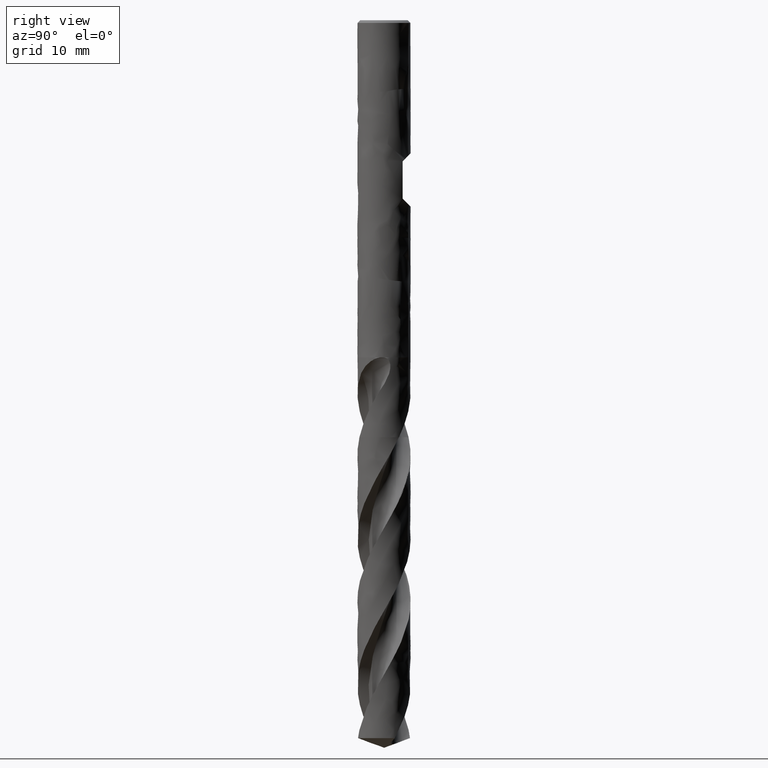
[diagram: clean part render]
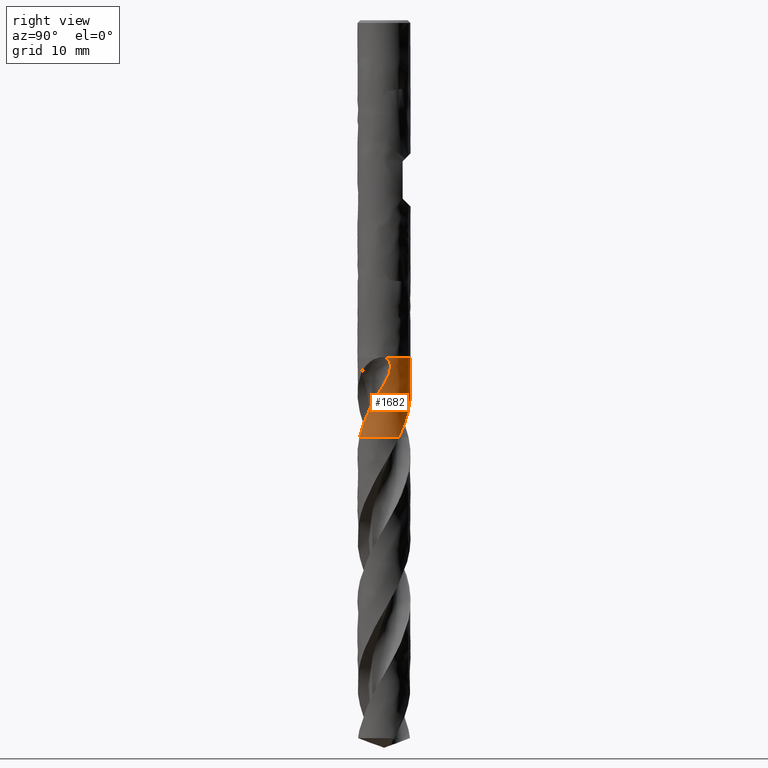
[diagram: same view with one face highlighted and labeled with its STEP entity id]
A machine part, right view. The second image highlights one B-rep face of the part: STEP entity #1682.
In plain terms, the highlighted face is a freeform B-spline surface patch.
Its self-contained STEP definition (entity closure, byte-faithful):
#131 = VERTEX_POINT('', #132);
#132 = CARTESIAN_POINT('', (2.99999955160898, 0.00164022740160811, -38.));
#142 = EDGE_CURVE('', #143, #131, #145, .T.);
#143 = VERTEX_POINT('', #144);
#144 = CARTESIAN_POINT('', (-2.96382198893386, 0.464498889032161, -38.));
#145 = CIRCLE('', #146, 3.);
#146 = AXIS2_PLACEMENT_3D('', #147, #148, #149);
#147 = CARTESIAN_POINT('', (1.42477179352876E-31, 2.32682891837997E-15, -38.));
#148 = DIRECTION('', (3.74939945665464E-33, 6.12323399573677E-17, -1.));
#149 = DIRECTION('', (-1., 6.12323399573677E-17, 0.));
#468 = VERTEX_POINT('', #469);
#469 = CARTESIAN_POINT('', (2.48434583777571, 1.68167349932337, -47.));
#478 = VERTEX_POINT('', #479);
#479 = CARTESIAN_POINT('', (-1.54999579044672, 2.56856244806262, -39.7624892759086));
#499 = EDGE_CURVE('', #478, #468, #500, .T.);
#500 = B_SPLINE_CURVE_WITH_KNOTS('', 3, (#501, #502, #503, #504, #505, #506, #507, #508, #509, #510, #511, #512, #513, #514, #515, #516, #517, #518, #519, #520, #521, #522, #523, #524, #525, #526, #527, #528, #529, #530, #531, #532, #533, #534, #535, #536, #537, #538, #539, #540, #541, #542, #543, #544, #545, #546, #547, #548, #549, #550, #551, #552, #553, #554, #555, #556, #557, #558, #559, #560, #561, #562, #563, #564, #565, #566, #567, #568, #569, #570, #571, #572, #573, #574, #575, #576, #577, #578, #579, #580, #581, #582, #583, #584, #585, #586, #587, #588, #589, #590, #591, #592, #593, #594, #595, #596, #597, #598, #599, #600), .UNSPECIFIED., .F., .U., (4, 3, 3, 3, 3, 3, 3, 3, 3, 3, 3, 3, 3, 3, 3, 3, 3, 3, 3, 3, 3, 3, 3, 3, 3, 3, 3, 3, 3, 3, 3, 3, 3, 4), (0., 0.294164830111087, 0.588382475794471, 0.882665256028507, 1.17702909666557, 1.47147775890357, 1.76602356573875, 2.06066807259052, 2.35542848702278, 2.65030632247468, 2.70866484142036, 2.74758859596559, 3.19199962110668, 3.32343383785876, 3.61949041096786, 3.81675932661893, 3.90437413458325, 4.101592031332, 4.29872699068833, 4.49585462065638, 4.58345757132054, 4.8792523758362, 5.17495792201363, 5.47063667582515, 5.76631412092824, 6.06197503268057, 6.35760755996048, 6.55467898895931, 6.85030819598594, 7.04737888052115, 7.49074671256159, 7.78630445857593, 8.22956865050507, 8.56762657826667), .UNSPECIFIED.);
#501 = CARTESIAN_POINT('', (-1.54999579044672, 2.56856244806262, -39.7624892759086));
#502 = CARTESIAN_POINT('', (-1.4958545497926, 2.60123391188736, -39.8374297418222));
#503 = CARTESIAN_POINT('', (-1.44105371207966, 2.6319668165862, -39.9127662828117));
#504 = CARTESIAN_POINT('', (-1.38577133008511, 2.66075888060421, -39.9884607159621));
#505 = CARTESIAN_POINT('', (-1.33047902246268, 2.68955611406868, -40.0641687396046));
#506 = CARTESIAN_POINT('', (-1.27468136032268, 2.71642398851035, -40.1402674336911));
#507 = CARTESIAN_POINT('', (-1.21856054690918, 2.74137013070406, -40.2167289865967));
#508 = CARTESIAN_POINT('', (-1.16242730934636, 2.7663217955297, -40.2932074667293));
#509 = CARTESIAN_POINT('', (-1.10594609500434, 2.78936227850821, -40.3700782825048));
#510 = CARTESIAN_POINT('', (-1.04927942271925, 2.81051822500015, -40.4473039132268));
#511 = CARTESIAN_POINT('', (-0.992597141558606, 2.83167999891273, -40.5245508158042));
#512 = CARTESIAN_POINT('', (-0.935707066859412, 2.85096436673012, -40.6021823030296));
#513 = CARTESIAN_POINT('', (-0.878774556057596, 2.86840640070855, -40.6801710861655));
#514 = CARTESIAN_POINT('', (-0.821825640025091, 2.8858534606482, -40.7581823419441));
#515 = CARTESIAN_POINT('', (-0.764817202572032, 2.90146261805241, -40.8365824959934));
#516 = CARTESIAN_POINT('', (-0.707899220392716, 2.91528363864777, -40.9153394490852));
#517 = CARTESIAN_POINT('', (-0.650962459814448, 2.92910921907868, -40.9941223856963));
#518 = CARTESIAN_POINT('', (-0.594095230816671, 2.94115054743852, -41.0732886432572));
#519 = CARTESIAN_POINT('', (-0.53744479377187, 2.95146626164819, -41.1528122655555));
#520 = CARTESIAN_POINT('', (-0.480775373604759, 2.96178543257372, -41.2323625356032));
#521 = CARTESIAN_POINT('', (-0.424307756422873, 2.97038066106825, -41.3122989013096));
#522 = CARTESIAN_POINT('', (-0.368181376503941, 2.97732135887205, -41.3925971586165));
#523 = CARTESIAN_POINT('', (-0.312032917527887, 2.98426478701519, -41.4729270037402));
#524 = CARTESIAN_POINT('', (-0.256204198060592, 2.98955531658545, -41.5536405943101));
#525 = CARTESIAN_POINT('', (-0.200816708283138, 2.99327122888562, -41.634709470146));
#526 = CARTESIAN_POINT('', (-0.145407154296222, 2.99698862145991, -41.715810640651));
#527 = CARTESIAN_POINT('', (-0.0904227911051677, 2.99913102388894, -41.7972908233468));
#528 = CARTESIAN_POINT('', (-0.0359916134119737, 2.99978409285806, -41.8791337090103));
#529 = CARTESIAN_POINT('', (-0.0252192781166615, 2.99991334006902, -41.8953310253879));
#530 = CARTESIAN_POINT('', (-0.0144682299486219, 2.99998429639138, -41.9115430884573));
#531 = CARTESIAN_POINT('', (-0.00373938593416866, 2.9999976694979, -41.9277697547097));
#532 = CARTESIAN_POINT('', (0.0034164997619958, 3.00000658904427, -41.9385925580588));
#533 = CARTESIAN_POINT('', (0.0105625505747062, 2.99998989266092, -41.949421921693));
#534 = CARTESIAN_POINT('', (0.0176984997046002, 2.99994779339711, -41.960257802352));
#535 = CARTESIAN_POINT('', (0.0991730261274094, 2.99946712607184, -42.0839762074298));
#536 = CARTESIAN_POINT('', (0.179350903839351, 2.99567103299351, -42.2085849659896));
#537 = CARTESIAN_POINT('', (0.257873436069986, 2.98889633325906, -42.3340157781032));
#538 = CARTESIAN_POINT('', (0.281096414207955, 2.9868927210556, -42.3711118437139));
#539 = CARTESIAN_POINT('', (0.304177102642055, 2.9846287059088, -42.4082841412074));
#540 = CARTESIAN_POINT('', (0.327109488973403, 2.98211324101275, -42.4455295080703));
#541 = CARTESIAN_POINT('', (0.378764863641017, 2.97644713719823, -42.5294249802701));
#542 = CARTESIAN_POINT('', (0.429684060368994, 2.96950289229166, -42.6137003346738));
#543 = CARTESIAN_POINT('', (0.479783337918766, 2.96138615324911, -42.6983349236811));
#544 = CARTESIAN_POINT('', (0.513165573122519, 2.95597779398611, -42.7547287859241));
#545 = CARTESIAN_POINT('', (0.546186849273579, 2.95004828367642, -42.8112901261516));
#546 = CARTESIAN_POINT('', (0.57880310341097, 2.94363499223023, -42.8680258409587));
#547 = CARTESIAN_POINT('', (0.593289252094515, 2.94078659973706, -42.893224381444));
#548 = CARTESIAN_POINT('', (0.607695719034523, 2.93784278696359, -42.9184582784675));
#549 = CARTESIAN_POINT('', (0.622017520346841, 2.93480735387889, -42.9437288233613));
#550 = CARTESIAN_POINT('', (0.654255398829882, 2.92797469918734, -43.0006119442565));
#551 = CARTESIAN_POINT('', (0.686060951736294, 2.92067896163759, -43.0576878634725));
#552 = CARTESIAN_POINT('', (0.717452776156632, 2.91294722128389, -43.1149279628143));
#553 = CARTESIAN_POINT('', (0.748831399158114, 2.9052187324119, -43.1721439905853));
#554 = CARTESIAN_POINT('', (0.779799334853037, 2.89705483980648, -43.2295290032839));
#555 = CARTESIAN_POINT('', (0.810454877010884, 2.88845337375028, -43.2870118169963));
#556 = CARTESIAN_POINT('', (0.841109279409594, 2.87985222749268, -43.3444924935238));
#557 = CARTESIAN_POINT('', (0.871454207972092, 2.87081359903474, -43.4020747946412));
#558 = CARTESIAN_POINT('', (0.901662468664171, 2.86129425131398, -43.4596468649736));
#559 = CARTESIAN_POINT('', (0.915086932659842, 2.85706388062028, -43.4852317271148));
#560 = CARTESIAN_POINT('', (0.928488891298431, 2.85273676885879, -43.5108125990737));
#561 = CARTESIAN_POINT('', (0.941872036858156, 2.84831126567738, -43.5363860966265));
#562 = CARTESIAN_POINT('', (0.987060753615193, 2.83336838032358, -43.6227360158022));
#563 = CARTESIAN_POINT('', (1.03201198442017, 2.81731019511015, -43.7090248301992));
#564 = CARTESIAN_POINT('', (1.07663392762191, 2.80015345756147, -43.7952579272564));
#565 = CARTESIAN_POINT('', (1.12124240581196, 2.78300189718919, -43.8814650028189));
#566 = CARTESIAN_POINT('', (1.1655284634681, 2.76475088563979, -43.9676279713678));
#567 = CARTESIAN_POINT('', (1.20945541361994, 2.74539935209168, -44.0537191638695));
#568 = CARTESIAN_POINT('', (1.25337838377568, 2.72604957188697, -44.139802556089));
#569 = CARTESIAN_POINT('', (1.29695145060958, 2.70559496801823, -44.2258241166867));
#570 = CARTESIAN_POINT('', (1.34011181683308, 2.6840455134711, -44.3117705855697));
#571 = CARTESIAN_POINT('', (1.3832719920238, 2.66249615430436, -44.3977166740436));
#572 = CARTESIAN_POINT('', (1.42602531790968, 2.63984883150005, -44.4835999070782));
#573 = CARTESIAN_POINT('', (1.46829960773977, 2.61612237135637, -44.5694127571379));
#574 = CARTESIAN_POINT('', (1.51057153372482, 2.59239723792154, -44.6552208088136));
#575 = CARTESIAN_POINT('', (1.5523696016197, 2.56759016410159, -44.7409714148933));
#576 = CARTESIAN_POINT('', (1.59362107524566, 2.5417261592337, -44.8266579867189));
#577 = CARTESIAN_POINT('', (1.63486858858716, 2.51586463739993, -44.9123363323367));
#578 = CARTESIAN_POINT('', (1.67557555113192, 2.48894270316996, -44.9979632238234));
#579 = CARTESIAN_POINT('', (1.7156728684598, 2.46098894927038, -45.0835304334439));
#580 = CARTESIAN_POINT('', (1.74240211810472, 2.44235471345893, -45.1405703418414));
#581 = CARTESIAN_POINT('', (1.7688629769616, 2.42326036012597, -45.1975882177958));
#582 = CARTESIAN_POINT('', (1.79503545595544, 2.40371539743433, -45.2545815021156));
#583 = CARTESIAN_POINT('', (1.83429710463876, 2.37439576520122, -45.340077809393));
#584 = CARTESIAN_POINT('', (1.87291658429433, 2.34405582526298, -45.4255276399005));
#585 = CARTESIAN_POINT('', (1.91079570616228, 2.31276020575238, -45.5109471504098));
#586 = CARTESIAN_POINT('', (1.93604647401162, 2.29189809533393, -45.5678890255988));
#587 = CARTESIAN_POINT('', (1.96096953591708, 2.2706104301919, -45.6248228349357));
#588 = CARTESIAN_POINT('', (1.98552816209581, 2.2489281708237, -45.6817610434343));
#589 = CARTESIAN_POINT('', (2.04077993570403, 2.2001476210809, -45.8098601065793));
#590 = CARTESIAN_POINT('', (2.09418671514244, 2.14937190167603, -45.9380237987429));
#591 = CARTESIAN_POINT('', (2.14562937314384, 2.09672949926842, -46.0661803471718));
#592 = CARTESIAN_POINT('', (2.17992206410861, 2.06163703500738, -46.1516120313251));
#593 = CARTESIAN_POINT('', (2.21335104194827, 2.02570607436923, -46.2370544682231));
#594 = CARTESIAN_POINT('', (2.24588443818637, 1.98897035933478, -46.3224834312796));
#595 = CARTESIAN_POINT('', (2.29467656016137, 1.93387578895294, -46.4506059413042));
#596 = CARTESIAN_POINT('', (2.3414601737719, 1.87696100022515, -46.57873923417));
#597 = CARTESIAN_POINT('', (2.38607764676773, 1.81841509661446, -46.706852928603));
#598 = CARTESIAN_POINT('', (2.42010541336283, 1.77376473411299, -46.8045595578469));
#599 = CARTESIAN_POINT('', (2.45288275699779, 1.72815408774061, -46.9022873671549));
#600 = CARTESIAN_POINT('', (2.48434583777571, 1.68167349932337, -47.));
#869 = EDGE_CURVE('', #478, #143, #870, .T.);
#870 = B_SPLINE_CURVE_WITH_KNOTS('', 3, (#871, #872, #873, #874, #875, #876, #877, #878, #879, #880, #881, #882, #883, #884, #885, #886, #887, #888, #889, #890, #891, #892, #893, #894, #895, #896, #897, #898, #899, #900, #901, #902, #903, #904, #905, #906, #907, #908, #909, #910, #911, #912, #913), .UNSPECIFIED., .F., .U., (4, 3, 3, 3, 3, 3, 3, 3, 3, 3, 3, 3, 3, 3, 4), (0., 0.29894724494428, 0.598100448810067, 0.897412483365339, 1.19683336865093, 1.49629712315956, 1.7957501625323, 1.99445656442013, 2.19311114035138, 2.39168693192649, 2.59014753950857, 2.78844266793803, 2.98650166053903, 3.11813380516181, 3.21234021473355), .UNSPECIFIED.);
#871 = CARTESIAN_POINT('', (-1.54999579044672, 2.56856244806263, -39.7624892759086));
#872 = CARTESIAN_POINT('', (-1.60501723786212, 2.53535982457085, -39.6863304577003));
#873 = CARTESIAN_POINT('', (-1.66040888543253, 2.49951968078601, -39.6115243887356));
#874 = CARTESIAN_POINT('', (-1.71577977252165, 2.46091441789542, -39.5382192865024));
#875 = CARTESIAN_POINT('', (-1.77118880723842, 2.42228255801007, -39.464863680911));
#876 = CARTESIAN_POINT('', (-1.82662938663151, 2.38084461905812, -39.3929347446101));
#877 = CARTESIAN_POINT('', (-1.88167952752436, 2.33651067955952, -39.3225954924507));
#878 = CARTESIAN_POINT('', (-1.93675889642388, 2.29215320165289, -39.2522188947714));
#879 = CARTESIAN_POINT('', (-1.99150889714053, 2.24484681242258, -39.1833544883954));
#880 = CARTESIAN_POINT('', (-2.04548681747898, 2.19453495746131, -39.1162032442386));
#881 = CARTESIAN_POINT('', (-2.09948436795377, 2.14420480560075, -39.0490275792062));
#882 = CARTESIAN_POINT('', (-2.15277854264889, 2.09080148494657, -38.9834828566488));
#883 = CARTESIAN_POINT('', (-2.20489265948438, 2.03431766451356, -38.9198029817127));
#884 = CARTESIAN_POINT('', (-2.25701423769551, 1.97782575707789, -38.8561139894875));
#885 = CARTESIAN_POINT('', (-2.30803075219586, 1.91817043025292, -38.7941964427546));
#886 = CARTESIAN_POINT('', (-2.35744484525082, 1.85538508175537, -38.7343589154561));
#887 = CARTESIAN_POINT('', (-2.40685717021627, 1.79260197978526, -38.6745235292088));
#888 = CARTESIAN_POINT('', (-2.4547506139471, 1.72658229912524, -38.6166652930712));
#889 = CARTESIAN_POINT('', (-2.50059898172792, 1.65740904202352, -38.5611985744679));
#890 = CARTESIAN_POINT('', (-2.53102233028781, 1.61150812529101, -38.5243928298968));
#891 = CARTESIAN_POINT('', (-2.56057783425623, 1.56417064218158, -38.4886019569866));
#892 = CARTESIAN_POINT('', (-2.58910243172904, 1.5154367680688, -38.4539826851733));
#893 = CARTESIAN_POINT('', (-2.61761958950924, 1.46671560456634, -38.4193724426457));
#894 = CARTESIAN_POINT('', (-2.64513498922293, 1.4165495165845, -38.3858978567486));
#895 = CARTESIAN_POINT('', (-2.67147640097651, 1.36499591172486, -38.3537543534934));
#896 = CARTESIAN_POINT('', (-2.69780736599784, 1.31346275249325, -38.32162359802));
#897 = CARTESIAN_POINT('', (-2.72299585620441, 1.26048262851493, -38.2907846229208));
#898 = CARTESIAN_POINT('', (-2.74685884890199, 1.20613700059688, -38.261484759912));
#899 = CARTESIAN_POINT('', (-2.77070799985803, 1.15182289588907, -38.2322018923041));
#900 = CARTESIAN_POINT('', (-2.79326587166897, 1.09606909709299, -38.2044147955663));
#901 = CARTESIAN_POINT('', (-2.81433718748578, 1.0389928754013, -38.178441831276));
#902 = CARTESIAN_POINT('', (-2.83539093375299, 0.981964244639205, -38.1524905235965));
#903 = CARTESIAN_POINT('', (-2.85499542793076, 0.923518272773404, -38.1283051855527));
#904 = CARTESIAN_POINT('', (-2.87294260564572, 0.863829140898579, -38.1063028748363));
#905 = CARTESIAN_POINT('', (-2.89086841131937, 0.804211088644902, -38.0843267651362));
#906 = CARTESIAN_POINT('', (-2.90717758123569, 0.743224430281383, -38.0644800845866));
#907 = CARTESIAN_POINT('', (-2.92165175980982, 0.681139482338351, -38.0473175249104));
#908 = CARTESIAN_POINT('', (-2.93127145514577, 0.639877155699145, -38.0359111024716));
#909 = CARTESIAN_POINT('', (-2.94009478701481, 0.598071433505059, -38.0256758885063));
#910 = CARTESIAN_POINT('', (-2.94805709400443, 0.555841137817389, -38.0168199072268));
#911 = CARTESIAN_POINT('', (-2.95375555280832, 0.525617786649715, -38.0104818641754));
#912 = CARTESIAN_POINT('', (-2.9590181284435, 0.495150818862973, -38.0048452348037));
#913 = CARTESIAN_POINT('', (-2.96382198893386, 0.464498889032161, -38.));
#1234 = VERTEX_POINT('', #1235);
#1235 = CARTESIAN_POINT('', (1.15359555335688, -2.76933517279423, -47.));
#1296 = EDGE_CURVE('', #1297, #1234, #1299, .T.);
#1297 = VERTEX_POINT('', #1298);
#1298 = CARTESIAN_POINT('', (2.50705565885017, -1.6476261479557, -43.8655215830403));
#1299 = B_SPLINE_CURVE_WITH_KNOTS('', 3, (#1300, #1301, #1302, #1303, #1304, #1305, #1306, #1307, #1308, #1309, #1310, #1311, #1312, #1313, #1314, #1315, #1316, #1317, #1318, #1319, #1320, #1321, #1322, #1323, #1324, #1325, #1326, #1327, #1328, #1329, #1330, #1331, #1332, #1333), .UNSPECIFIED., .F., .U., (4, 3, 3, 3, 3, 3, 3, 3, 3, 3, 3, 4), (0., 0.197079818950479, 0.640474655540299, 0.936065962453795, 1.37935499722557, 1.51071553137771, 1.80625121608136, 2.10178364029937, 2.54494692056742, 2.84041410405612, 3.28347251669463, 3.60658912974349), .UNSPECIFIED.);
#1300 = CARTESIAN_POINT('', (2.50705565885017, -1.6476261479557, -43.8655215830403));
#1301 = CARTESIAN_POINT('', (2.48985962557001, -1.67379192142214, -43.9232732484156));
#1302 = CARTESIAN_POINT('', (2.47220093569807, -1.69976936873229, -43.9809747538443));
#1303 = CARTESIAN_POINT('', (2.45407238958687, -1.72555171080654, -44.0386135668816));
#1304 = CARTESIAN_POINT('', (2.41328635789986, -1.78355743362381, -44.1682907313116));
#1305 = CARTESIAN_POINT('', (2.37010555871608, -1.84059121335117, -44.2976763345009));
#1306 = CARTESIAN_POINT('', (2.32462685721199, -1.89634120735924, -44.4267807771531));
#1307 = CARTESIAN_POINT('', (2.29430826144819, -1.93350720982334, -44.5128488766949));
#1308 = CARTESIAN_POINT('', (2.26296461477334, -1.97010884745189, -44.5988077697154));
#1309 = CARTESIAN_POINT('', (2.23063365489142, -2.00605919595261, -44.6846595502605));
#1310 = CARTESIAN_POINT('', (2.18214792589974, -2.05997280881557, -44.8134087794874));
#1311 = CARTESIAN_POINT('', (2.13142741147034, -2.11243599073587, -44.9419523879164));
#1312 = CARTESIAN_POINT('', (2.07859413646751, -2.16320281431097, -45.0702695039644));
#1313 = CARTESIAN_POINT('', (2.06293796931473, -2.17824662667476, -45.1082939159908));
#1314 = CARTESIAN_POINT('', (2.04709506916159, -2.19314293732557, -45.1463005550659));
#1315 = CARTESIAN_POINT('', (2.03106924612585, -2.20788534970495, -45.1842890012512));
#1316 = CARTESIAN_POINT('', (1.99501425735487, -2.24105291380511, -45.2697556258096));
#1317 = CARTESIAN_POINT('', (1.95802689685389, -2.27344554004758, -45.355138287776));
#1318 = CARTESIAN_POINT('', (1.92019972532388, -2.30495835425852, -45.4404649604615));
#1319 = CARTESIAN_POINT('', (1.88237297112063, -2.3364708208056, -45.5257906917839));
#1320 = CARTESIAN_POINT('', (1.84370023798481, -2.36710746669154, -45.6110734463504));
#1321 = CARTESIAN_POINT('', (1.80433125576585, -2.396745443193, -45.6963732288535));
#1322 = CARTESIAN_POINT('', (1.74529581372551, -2.44118883353046, -45.8242838346702));
#1323 = CARTESIAN_POINT('', (1.6846888211716, -2.48339796838225, -45.9522743252724));
#1324 = CARTESIAN_POINT('', (1.62264159669888, -2.52329828769063, -46.0802572456029));
#1325 = CARTESIAN_POINT('', (1.58127328060745, -2.54990075114207, -46.1655864113718));
#1326 = CARTESIAN_POINT('', (1.539252661728, -2.57548467460968, -46.2509254548839));
#1327 = CARTESIAN_POINT('', (1.49661728841512, -2.60002628679345, -46.3362485430995));
#1328 = CARTESIAN_POINT('', (1.4326847711074, -2.63682688038001, -46.4641920648804));
#1329 = CARTESIAN_POINT('', (1.36736156516424, -2.6712856302207, -46.5921431899335));
#1330 = CARTESIAN_POINT('', (1.30087226689973, -2.70328158822035, -46.7200753090877));
#1331 = CARTESIAN_POINT('', (1.25238250517445, -2.72661581523238, -46.8133745036456));
#1332 = CARTESIAN_POINT('', (1.20326008581725, -2.74864689195026, -46.9066945226753));
#1333 = CARTESIAN_POINT('', (1.15359555335688, -2.76933517279423, -47.));
#1336 = VERTEX_POINT('', #1337);
#1337 = CARTESIAN_POINT('', (2.85222793413956, -0.929943983105435, -42.4676549688651));
#1346 = EDGE_CURVE('', #1336, #131, #1347, .T.);
#1347 = B_SPLINE_CURVE_WITH_KNOTS('', 3, (#1348, #1349, #1350, #1351, #1352, #1353, #1354, #1355, #1356, #1357, #1358, #1359, #1360, #1361, #1362, #1363, #1364, #1365, #1366, #1367, #1368, #1369, #1370, #1371, #1372, #1373, #1374, #1375, #1376, #1377, #1378, #1379, #1380, #1381, #1382, #1383, #1384, #1385, #1386, #1387, #1388, #1389, #1390, #1391, #1392, #1393, #1394, #1395, #1396, #1397, #1398, #1399, #1400, #1401, #1402, #1403, #1404, #1405, #1406, #1407, #1408, #1409, #1410, #1411, #1412, #1413, #1414, #1415, #1416, #1417, #1418, #1419, #1420, #1421, #1422, #1423, #1424, #1425, #1426, #1427, #1428, #1429, #1430, #1431, #1432, #1433, #1434, #1435, #1436, #1437, #1438, #1439, #1440, #1441, #1442, #1443, #1444, #1445, #1446, #1447, #1448, #1449, #1450), .UNSPECIFIED., .F., .U., (4, 3, 3, 3, 3, 3, 3, 3, 3, 3, 3, 3, 3, 3, 3, 3, 3, 3, 3, 3, 3, 3, 3, 3, 3, 3, 3, 3, 3, 3, 3, 3, 3, 3, 4), (0., 0.131300001536179, 0.426522809850261, 0.721488446798984, 1.01615676007376, 1.2126748285733, 1.40911375144577, 1.60547487849174, 1.69290343880252, 1.7318024763119, 1.92841427811608, 2.2227538317156, 2.41912414539842, 2.61542093117763, 2.81166578380511, 3.00788364042373, 3.20411708244748, 3.40042246020987, 3.59687593386893, 3.79359156419018, 3.99073260830054, 4.12236386603068, 4.16132308088065, 4.29336631528, 4.42578769694584, 4.51396977237787, 4.60226462379197, 4.69065217823062, 4.77909383227413, 4.8675344107312, 4.95591133090388, 5.04416827860045, 5.13226678409075, 5.22019045714594, 5.25190092771809), .UNSPECIFIED.);
#1348 = CARTESIAN_POINT('', (2.85222793413955, -0.929943983105437, -42.4676549688651));
#1349 = CARTESIAN_POINT('', (2.85965955648124, -0.907150480245042, -42.431038737865));
#1350 = CARTESIAN_POINT('', (2.86686344791428, -0.884127555441275, -42.3945176514386));
#1351 = CARTESIAN_POINT('', (2.87381949473811, -0.860907376936409, -42.358076495053));
#1352 = CARTESIAN_POINT('', (2.88945988814304, -0.808697733162172, -42.2761400106623));
#1353 = CARTESIAN_POINT('', (2.90384616763179, -0.755476346058484, -42.1945940913081));
#1354 = CARTESIAN_POINT('', (2.91679855293644, -0.701631100784358, -42.1132492601294));
#1355 = CARTESIAN_POINT('', (2.92973965529642, -0.64783276060989, -42.0319752891983));
#1356 = CARTESIAN_POINT('', (2.94125211326363, -0.593398295255997, -41.9508805911523));
#1357 = CARTESIAN_POINT('', (2.95122759836045, -0.538753805253962, -41.8697531525374));
#1358 = CARTESIAN_POINT('', (2.96119302822538, -0.484164396585116, -41.7887074899162));
#1359 = CARTESIAN_POINT('', (2.96962624618391, -0.429354723643855, -41.7076064590942));
#1360 = CARTESIAN_POINT('', (2.97649782073306, -0.374780900222136, -41.6262296072181));
#1361 = CARTESIAN_POINT('', (2.98108056172392, -0.338384919092431, -41.5719583434587));
#1362 = CARTESIAN_POINT('', (2.9849713317779, -0.302088149641623, -41.5175571054091));
#1363 = CARTESIAN_POINT('', (2.98818213667057, -0.266021649651181, -41.4629683030976));
#1364 = CARTESIAN_POINT('', (2.99139164844465, -0.229969675071965, -41.4084014858638));
#1365 = CARTESIAN_POINT('', (2.99392222386826, -0.194143049021721, -41.3536403116114));
#1366 = CARTESIAN_POINT('', (2.99580098782753, -0.15867085848274, -41.298633245481));
#1367 = CARTESIAN_POINT('', (2.99767900773877, -0.123212716017023, -41.2436479638326));
#1368 = CARTESIAN_POINT('', (2.99890596848791, -0.0881031390922714, -41.1884093675595));
#1369 = CARTESIAN_POINT('', (2.99952328429379, -0.0534795940466666, -41.1328664375546));
#1370 = CARTESIAN_POINT('', (2.99979814028477, -0.0380636777615451, -41.1081362963152));
#1371 = CARTESIAN_POINT('', (2.99995236155274, -0.0227433034144659, -41.0833446649144));
#1372 = CARTESIAN_POINT('', (2.99999054846375, -0.00753054634003399, -41.0584875437939));
#1373 = CARTESIAN_POINT('', (3.00000753872504, -0.000762030354459008, -41.0474280217864));
#1374 = CARTESIAN_POINT('', (3.00000156717491, 0.00598525657889288, -41.0363554186413));
#1375 = CARTESIAN_POINT('', (2.99997307480335, 0.0127102499944394, -41.0252694014983));
#1376 = CARTESIAN_POINT('', (2.99982906258945, 0.0467011442995526, -40.9692360920673));
#1377 = CARTESIAN_POINT('', (2.99910852263342, 0.0801264929967236, -40.9128531662645));
#1378 = CARTESIAN_POINT('', (2.99787681999681, 0.112847561452983, -40.8560821526338));
#1379 = CARTESIAN_POINT('', (2.99603288793931, 0.161832945821249, -40.7710925708481));
#1380 = CARTESIAN_POINT('', (2.99303911200714, 0.209263369456024, -40.6851971894765));
#1381 = CARTESIAN_POINT('', (2.98917326107231, 0.254643309926523, -40.5982954450827));
#1382 = CARTESIAN_POINT('', (2.98659413654949, 0.284918796303134, -40.5403184501545));
#1383 = CARTESIAN_POINT('', (2.98362756225021, 0.31429089372829, -40.4818746322257));
#1384 = CARTESIAN_POINT('', (2.98037293701968, 0.342603497181027, -40.4229476197451));
#1385 = CARTESIAN_POINT('', (2.97711953043451, 0.370905499406221, -40.3640426715961));
#1386 = CARTESIAN_POINT('', (2.97357718122212, 0.398158845469567, -40.3046349404125));
#1387 = CARTESIAN_POINT('', (2.96985832604577, 0.424195147563741, -40.2447211524314));
#1388 = CARTESIAN_POINT('', (2.9661404547463, 0.450224561377897, -40.1848232155088));
#1389 = CARTESIAN_POINT('', (2.96224449630806, 0.475049450612029, -40.1243944671845));
#1390 = CARTESIAN_POINT('', (2.9582969117246, 0.498477062742816, -40.0634462976969));
#1391 = CARTESIAN_POINT('', (2.95434987018227, 0.521901452103599, -40.0025065124155));
#1392 = CARTESIAN_POINT('', (2.95034922127386, 0.543941552204516, -39.9410149176763));
#1393 = CARTESIAN_POINT('', (2.946434850713, 0.564377241305748, -39.87900686257));
#1394 = CARTESIAN_POINT('', (2.94252016923725, 0.5848145535951, -39.8169938822205));
#1395 = CARTESIAN_POINT('', (2.93868912272841, 0.603662143312401, -39.7544218994365));
#1396 = CARTESIAN_POINT('', (2.93509536090229, 0.620657089228729, -39.6913594313137));
#1397 = CARTESIAN_POINT('', (2.93150028166611, 0.6376582651942, -39.628273845596));
#1398 = CARTESIAN_POINT('', (2.92813963557946, 0.652821532084708, -39.5646400605255));
#1399 = CARTESIAN_POINT('', (2.92518127020851, 0.665818696359117, -39.5005769861424));
#1400 = CARTESIAN_POINT('', (2.9222206729997, 0.678825665900805, -39.4364655815578));
#1401 = CARTESIAN_POINT('', (2.91965976503894, 0.689680688145466, -39.3718449715736));
#1402 = CARTESIAN_POINT('', (2.91767747291687, 0.697967165440764, -39.3069171393113));
#1403 = CARTESIAN_POINT('', (2.91569253553191, 0.706264700597185, -39.2419026643266));
#1404 = CARTESIAN_POINT('', (2.91428534699108, 0.712002990775059, -39.1764663479305));
#1405 = CARTESIAN_POINT('', (2.91363986135073, 0.714634702731483, -39.1109504837135));
#1406 = CARTESIAN_POINT('', (2.9129929797944, 0.717272105982256, -39.0452929360319));
#1407 = CARTESIAN_POINT('', (2.91311259771614, 0.716794694948383, -38.9793858723804));
#1408 = CARTESIAN_POINT('', (2.91416515702988, 0.712489605224561, -38.9138218102688));
#1409 = CARTESIAN_POINT('', (2.91486795185846, 0.709615092828904, -38.8700446252763));
#1410 = CARTESIAN_POINT('', (2.91598769015078, 0.705025694017362, -38.8263394205372));
#1411 = CARTESIAN_POINT('', (2.91755710514577, 0.698470141246904, -38.7829832176083));
#1412 = CARTESIAN_POINT('', (2.91802160861578, 0.696529878780005, -38.7701509796269));
#1413 = CARTESIAN_POINT('', (2.91852551037364, 0.694416589468655, -38.7573449599938));
#1414 = CARTESIAN_POINT('', (2.91906923882117, 0.692123384208322, -38.7445742011074));
#1415 = CARTESIAN_POINT('', (2.92091208044731, 0.684351096166019, -38.7012906720223));
#1416 = CARTESIAN_POINT('', (2.92321947756234, 0.674495784216627, -38.6583288903413));
#1417 = CARTESIAN_POINT('', (2.92598277639699, 0.662287544974369, -38.6161318348647));
#1418 = CARTESIAN_POINT('', (2.92875398880559, 0.650044343605356, -38.5738139348689));
#1419 = CARTESIAN_POINT('', (2.93199498223761, 0.63538794855452, -38.5321241986038));
#1420 = CARTESIAN_POINT('', (2.93563666248819, 0.618091729321139, -38.4916772058452));
#1421 = CARTESIAN_POINT('', (2.93806173099689, 0.606573827227534, -38.4647427355839));
#1422 = CARTESIAN_POINT('', (2.94066877853067, 0.593859514033674, -38.4382986808803));
#1423 = CARTESIAN_POINT('', (2.94341607496676, 0.579915346949253, -38.4125689066726));
#1424 = CARTESIAN_POINT('', (2.94616688491795, 0.565953346681283, -38.3868062266783));
#1425 = CARTESIAN_POINT('', (2.9490648932384, 0.550723928256056, -38.3616999788923));
#1426 = CARTESIAN_POINT('', (2.95204788256076, 0.534240862409955, -38.3375001771911));
#1427 = CARTESIAN_POINT('', (2.95503400379997, 0.517740490571111, -38.3132749674987));
#1428 = CARTESIAN_POINT('', (2.95811331020309, 0.499937238290552, -38.2898932631183));
#1429 = CARTESIAN_POINT('', (2.96120345658706, 0.480909647123922, -38.2676122904008));
#1430 = CARTESIAN_POINT('', (2.96429549436512, 0.461870409689103, -38.2453176801093));
#1431 = CARTESIAN_POINT('', (2.96740736556049, 0.44154629045707, -38.2240585858006));
#1432 = CARTESIAN_POINT('', (2.97044184762308, 0.420089549845768, -38.2040710119427));
#1433 = CARTESIAN_POINT('', (2.97347629278169, 0.398633070181407, -38.1840836811645));
#1434 = CARTESIAN_POINT('', (2.97644251192663, 0.375974366937454, -38.1653039770629));
#1435 = CARTESIAN_POINT('', (2.97923845193502, 0.352332579407297, -38.1479163271212));
#1436 = CARTESIAN_POINT('', (2.98203237946512, 0.328707808903267, -38.1305411925654));
#1437 = CARTESIAN_POINT('', (2.98466473119304, 0.304025020395066, -38.1144993231513));
#1438 = CARTESIAN_POINT('', (2.98704059720278, 0.278547070820135, -38.0999027324738));
#1439 = CARTESIAN_POINT('', (2.98941323795271, 0.253103707794391, -38.0853259568015));
#1440 = CARTESIAN_POINT('', (2.9915370674699, 0.226789247358289, -38.0721440460236));
#1441 = CARTESIAN_POINT('', (2.9933339896568, 0.199879029328456, -38.0603929706927));
#1442 = CARTESIAN_POINT('', (2.99512768594112, 0.173017121538521, -38.0486629913362));
#1443 = CARTESIAN_POINT('', (2.99660065032003, 0.14548656801159, -38.0383238283998));
#1444 = CARTESIAN_POINT('', (2.99769621800695, 0.117547371501108, -38.0293475885426));
#1445 = CARTESIAN_POINT('', (2.99878961152797, 0.0896636206276876, -38.0203891621304));
#1446 = CARTESIAN_POINT('', (2.99950999788601, 0.0613044745820618, -38.0127643660884));
#1447 = CARTESIAN_POINT('', (2.99982180882403, 0.0326973286938931, -38.0064014694196));
#1448 = CARTESIAN_POINT('', (2.99993426626843, 0.0223799019268075, -38.0041066329944));
#1449 = CARTESIAN_POINT('', (2.99999387415131, 0.0120243792759336, -38.0019742273443));
#1450 = CARTESIAN_POINT('', (2.99999955160898, 0.00164022740160794, -38.));
#1601 = EDGE_CURVE('', #1336, #1297, #1602, .T.);
#1602 = B_SPLINE_CURVE_WITH_KNOTS('', 3, (#1603, #1604, #1605, #1606, #1607, #1608, #1609, #1610, #1611, #1612, #1613, #1614, #1615, #1616, #1617, #1618, #1619, #1620, #1621, #1622, #1623, #1624, #1625, #1626, #1627), .UNSPECIFIED., .F., .U., (4, 3, 3, 3, 3, 3, 3, 3, 4), (0., 0.295954903773173, 0.493183906870301, 0.580790325719994, 0.77795909516423, 0.97504849077229, 1.17213581276987, 1.36925925575311, 1.61060259318274), .UNSPECIFIED.);
#1603 = CARTESIAN_POINT('', (2.85222793413956, -0.929943983105435, -42.4676549688651));
#1604 = CARTESIAN_POINT('', (2.83547679134231, -0.981321354520339, -42.5501892643366));
#1605 = CARTESIAN_POINT('', (2.81764244159466, -1.03130355642199, -42.6333935997401));
#1606 = CARTESIAN_POINT('', (2.79895470011047, -1.07974653818825, -42.7172756052198));
#1607 = CARTESIAN_POINT('', (2.78650089523657, -1.11202970322116, -42.7731758930935));
#1608 = CARTESIAN_POINT('', (2.77366623467492, -1.14363484442628, -42.8293895338914));
#1609 = CARTESIAN_POINT('', (2.76053470941684, -1.1744990924247, -42.885932468239));
#1610 = CARTESIAN_POINT('', (2.75470186595148, -1.18820856818724, -42.9110480643818));
#1611 = CARTESIAN_POINT('', (2.74881071401733, -1.20177155211878, -42.9362306747656));
#1612 = CARTESIAN_POINT('', (2.74286851811917, -1.21518405696863, -42.9614806248595));
#1613 = CARTESIAN_POINT('', (2.72949489243717, -1.24537051032597, -43.0183086707255));
#1614 = CARTESIAN_POINT('', (2.71586173205024, -1.2748004496119, -43.0754822877243));
#1615 = CARTESIAN_POINT('', (2.70197633892527, -1.30358116889173, -43.1329137136393));
#1616 = CARTESIAN_POINT('', (2.68809653561516, -1.33235030197511, -43.1903220195003));
#1617 = CARTESIAN_POINT('', (2.67396386874377, -1.36047468826599, -43.2479949311746));
#1618 = CARTESIAN_POINT('', (2.65952191868831, -1.38814378362496, -43.3058038991704));
#1619 = CARTESIAN_POINT('', (2.64508012057903, -1.41581258787276, -43.3636122589484));
#1620 = CARTESIAN_POINT('', (2.63032812009049, -1.4430297907248, -43.4215609496649));
#1621 = CARTESIAN_POINT('', (2.61513760378918, -1.47005282668609, -43.4794827802928));
#1622 = CARTESIAN_POINT('', (2.59994430346089, -1.4970808152678, -43.5374152264874));
#1623 = CARTESIAN_POINT('', (2.58429767228475, -1.523934169758, -43.5953123361487));
#1624 = CARTESIAN_POINT('', (2.56820157126089, -1.55059365707882, -43.653171683979));
#1625 = CARTESIAN_POINT('', (2.54849469783219, -1.58323355797948, -43.7240103822867));
#1626 = CARTESIAN_POINT('', (2.52811386807973, -1.61558362260507, -43.7947990720394));
#1627 = CARTESIAN_POINT('', (2.50705565885017, -1.6476261479557, -43.8655215830403));
#1682 = ADVANCED_FACE('', (#1683), #1698, .T.);
#1683 = FACE_OUTER_BOUND('', #1684, .T.);
#1684 = EDGE_LOOP('', (#1685, #1692, #1693, #1694, #1695, #1696, #1697));
#1685 = ORIENTED_EDGE('', *, *, #1686, .F.);
#1686 = EDGE_CURVE('', #468, #1234, #1687, .T.);
#1687 = CIRCLE('', #1688, 3.);
#1688 = AXIS2_PLACEMENT_3D('', #1689, #1690, #1691);
#1689 = CARTESIAN_POINT('', (1.76221774462768E-31, 2.87791997799628E-15, -47.));
#1690 = DIRECTION('', (3.74939945665464E-33, 6.12323399573677E-17, -1.));
#1691 = DIRECTION('', (-1., 6.12323399573677E-17, 0.));
#1692 = ORIENTED_EDGE('', *, *, #499, .F.);
#1693 = ORIENTED_EDGE('', *, *, #869, .T.);
#1694 = ORIENTED_EDGE('', *, *, #142, .T.);
#1695 = ORIENTED_EDGE('', *, *, #1346, .F.);
#1696 = ORIENTED_EDGE('', *, *, #1601, .T.);
#1697 = ORIENTED_EDGE('', *, *, #1296, .T.);
#1698 = (
   BOUNDED_SURFACE ()
   B_SPLINE_SURFACE (2, 1, ((#1699, #1700), (#1701, #1702), (#1703, #1704), (#1705, #1706), (#1707, #1708), (#1709, #1710), (#1711, #1712), (#1713, #1714), (#1715, #1716)), .UNSPECIFIED., .T., .F., .U.)
   B_SPLINE_SURFACE_WITH_KNOTS ((3, 2, 2, 2, 3), (2, 2), (0., 4.71238898038469, 9.42477796076938, 14.1371669411541, 18.8495559215388), (0., 0.209750658848074), .UNSPECIFIED.)
   GEOMETRIC_REPRESENTATION_ITEM ()
   RATIONAL_B_SPLINE_SURFACE (((1., 1.), (0.707106781186548, 0.707106781186548), (1., 1.), (0.707106781186548, 0.707106781186548), (1., 1.), (0.707106781186548, 0.707106781186548), (1., 1.), (0.707106781186548, 0.707106781186548), (1., 1.)))
   REPRESENTATION_ITEM ('')
   SURFACE ()
);
#1699 = CARTESIAN_POINT('', (-3., 2.51052593825207E-15, -38.));
#1700 = CARTESIAN_POINT('', (-3., 3.06161699786838E-15, -47.));
#1701 = CARTESIAN_POINT('', (-3., 3., -38.));
#1702 = CARTESIAN_POINT('', (-3., 3., -47.));
#1703 = CARTESIAN_POINT('', (1.23259516440783E-31, 3., -38.));
#1704 = CARTESIAN_POINT('', (1.72563323017096E-31, 3., -47.));
#1705 = CARTESIAN_POINT('', (3., 3., -38.));
#1706 = CARTESIAN_POINT('', (3., 3., -47.));
#1707 = CARTESIAN_POINT('', (3., 2.51052593825207E-15, -38.));
#1708 = CARTESIAN_POINT('', (3., 3.06161699786838E-15, -47.));
#1709 = CARTESIAN_POINT('', (3., -3., -38.));
#1710 = CARTESIAN_POINT('', (3., -3., -47.));
#1711 = CARTESIAN_POINT('', (3.67394039744206E-16, -3., -38.));
#1712 = CARTESIAN_POINT('', (3.67394039744206E-16, -3., -47.));
#1713 = CARTESIAN_POINT('', (-3., -3., -38.));
#1714 = CARTESIAN_POINT('', (-3., -3., -47.));
#1715 = CARTESIAN_POINT('', (-3., 2.51052593825207E-15, -38.));
#1716 = CARTESIAN_POINT('', (-3., 3.06161699786838E-15, -47.));